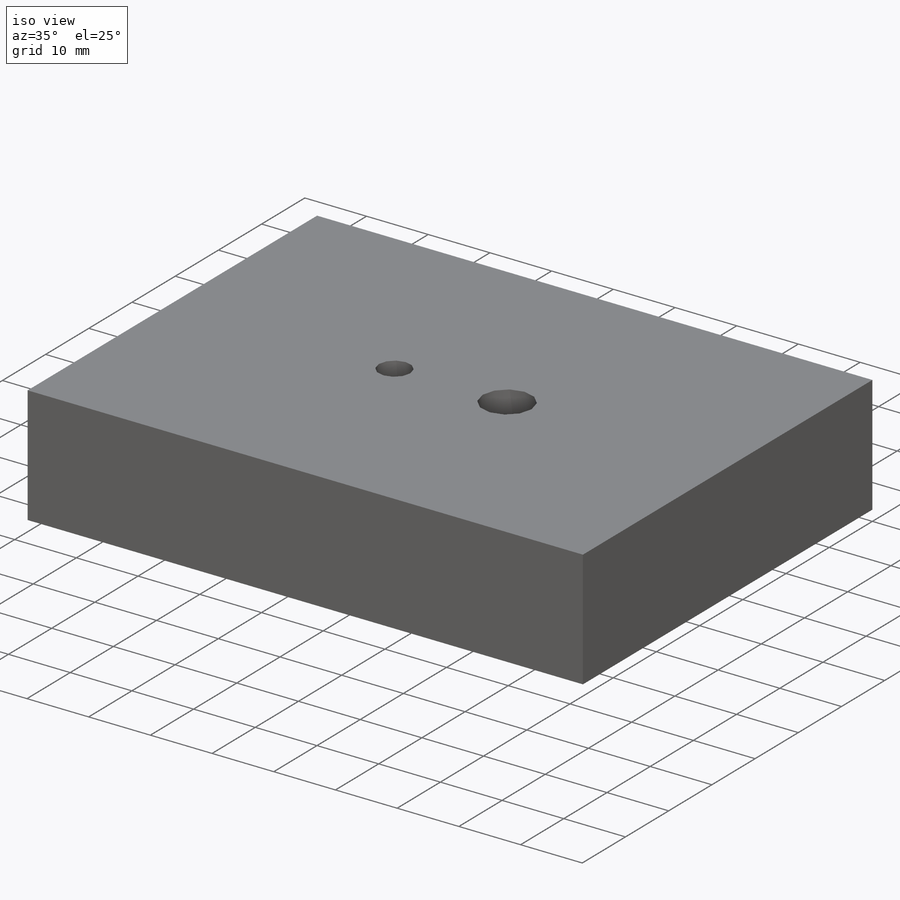
[diagram: iso view]
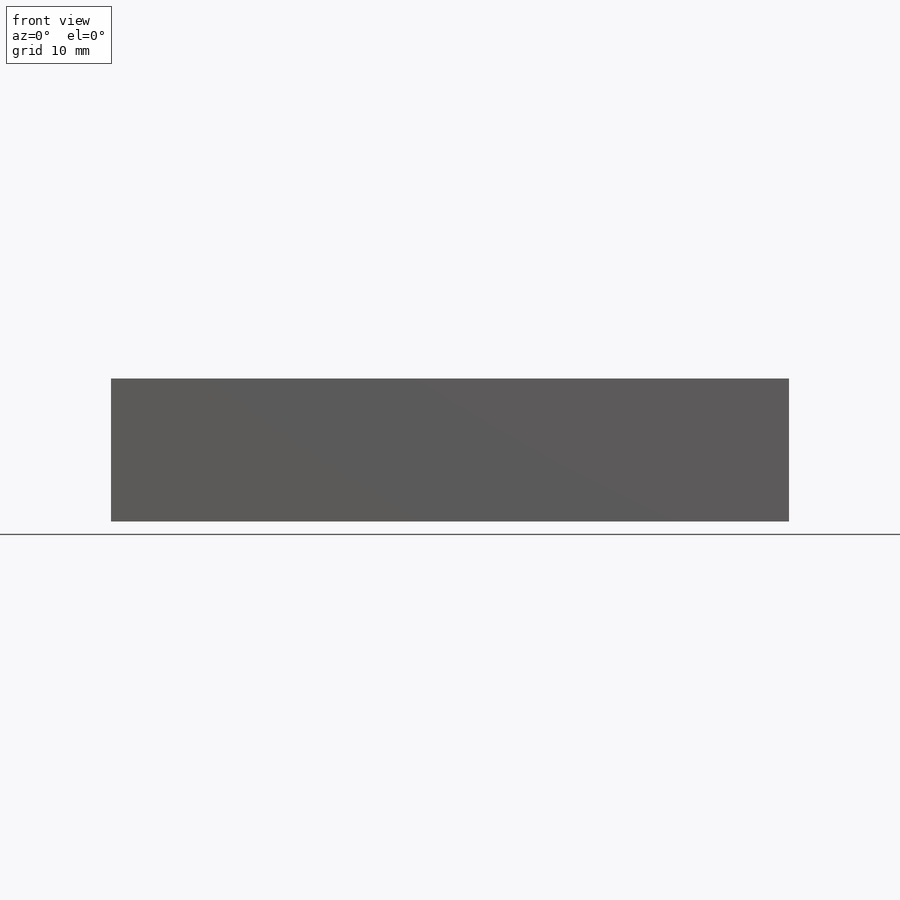
[diagram: front view]
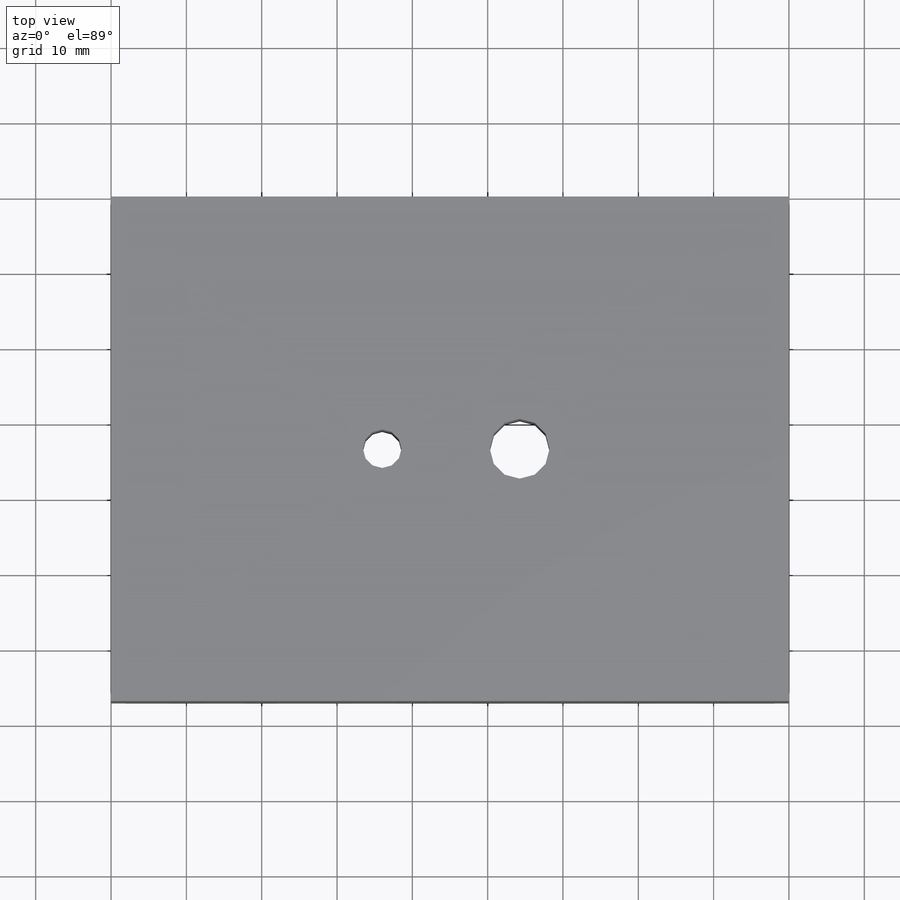
[diagram: top view]
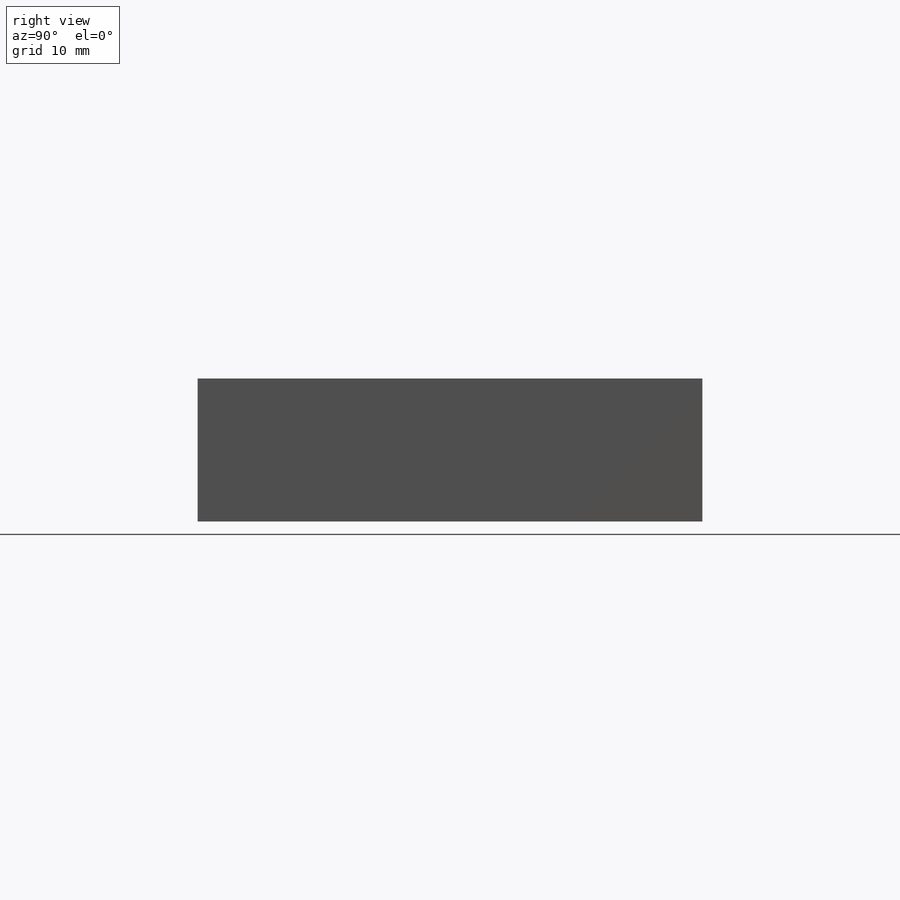
[diagram: right view]
SOLIDWORKS PART (.sldprt)
format: sldprt  version: not decoded by parser v0  size: 235,008 bytes
history: native  units: mm
features: sketch x6, plane x3, hole x2, material x1, extrude x1 (+8 scaffold rows collapsed)
feature tree (21):
  scaffold x8  (default folders/planes/origin — collapsed)
  material  "Материал <не указан>"
  plane  "Спереди"
  plane  "Сверху"
  plane  "Справа"
  sketch  "Эскиз1"  dims[D1=90.0mm D2=67.0mm D3=36.0mm D4=54.25mm]
  extrude  "Бобышка-Вытянуть1"  Depth=19mm
  sketch  "Эскиз2"  dims[D1=5.0mm D2=7.5mm]
  hole  "Отверстие обработанное метчиком 1/4-201"  [1 undecoded]
  sketch  "Трехмерный эскиз1"
  sketch  "Эскиз3"  dims[hole-wizard template sketch: 59 standard entries collapsed; hole parameters kept: c18.Диаметр резьбы=5.1054mm c18.Глубина проходного сверла=19.0mm]
  hole  "Отверстие обработанное метчиком 3/8-161"  [1 undecoded]
  sketch  "Трехмерный эскиз2"
  sketch  "Эскиз4"  dims[hole-wizard template sketch: 59 standard entries collapsed; hole parameters kept: c18.Диаметр резьбы=7.9375mm c18.Глубина проходного сверла=19.0mm]
decode coverage: 5 of 9 modeling features carry decoded parameters
note: ~ marks probable driven/reference dimensions
note: 2 parameter values undecoded
note: suppression state not decoded; provenance and decode notes live in map.json
